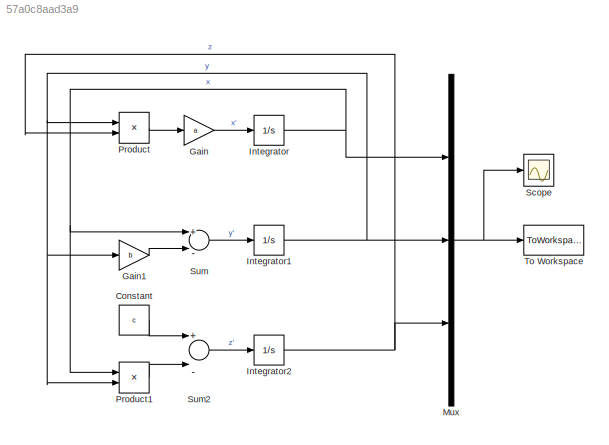
MODEL slx_57a0c8aad3a9
KIND model
BLOCK [Constant] Constant
  Value = c
BLOCK [Gain] Gain
  Gain = a
  OutDataTypeStr = Inherit: Inherit via internal rule
  ParamDataTypeStr = Inherit: Inherit via internal rule
  SaturateOnIntegerOverflow = off
BLOCK [Gain] Gain1
  Gain = b
  OutDataTypeStr = Inherit: Inherit via internal rule
  ParamDataTypeStr = Inherit: Inherit via internal rule
  SaturateOnIntegerOverflow = off
BLOCK [Integrator] Integrator
  InitialCondition = param.ic(1)
  Ports = [1, 1]
BLOCK [Integrator] Integrator1
  InitialCondition = param.ic(2)
  Ports = [1, 1]
BLOCK [Integrator] Integrator2
  InitialCondition = param.ic(3)
  Ports = [1, 1]
BLOCK [Mux] Mux
  DisplayOption = bar
  Inputs = 3
  Ports = [3, 1]
BLOCK [Product] Product
  InputSameDT = off
  OutDataTypeStr = Inherit: Inherit via internal rule
  Ports = [2, 1]
  RndMeth = Floor
  SaturateOnIntegerOverflow = off
BLOCK [Product] Product1
  InputSameDT = off
  OutDataTypeStr = Inherit: Inherit via internal rule
  Ports = [2, 1]
  RndMeth = Floor
  SaturateOnIntegerOverflow = off
BLOCK [Scope] Scope
  Floating = off
  LegendLocations = 0.69187     0.61712     0.18981     0.20157
  LimitDataPoints = off
  NumInputPorts = 1
  Ports = [1]
  ShowLegends = on
  YMax = 2e+12
  YMin = -1e+13
BLOCK [Sum] Sum
  InputSameDT = off
  Inputs = +|-
  OutDataTypeStr = Inherit: Inherit via internal rule
  Ports = [2, 1]
  SaturateOnIntegerOverflow = off
BLOCK [Sum] Sum2
  InputSameDT = off
  Inputs = +|-
  OutDataTypeStr = Inherit: Inherit via internal rule
  Ports = [2, 1]
  SaturateOnIntegerOverflow = off
BLOCK [ToWorkspace] To Workspace
  FixptAsFi = on
  MaxDataPoints = inf
  Ports = [1]
  SampleTime = -1
  Save2DSignal = 3-D array (concatenate along third dimension)
  SaveFormat = Timeseries
  VariableName = simout
LINE Constant:1 -> Sum2:1
LINE Gain1:1 -> Sum:2
LINE Gain:1 -> Integrator:1
NET Integrator1:1 -> Gain1:1, Mux:2, Product1:2, Product:1
NET Integrator2:1 -> Mux:3, Product:2
NET Integrator:1 -> Mux:1, Product1:1, Sum:1
NET Mux:1 -> Scope:1, To Workspace:1
LINE Product1:1 -> Sum2:2
LINE Product:1 -> Gain:1
LINE Sum2:1 -> Integrator2:1
LINE Sum:1 -> Integrator1:1
note: NET lines group one-source signal fan-out (src -> all destinations, sorted); 1:1 wires keep LINE
